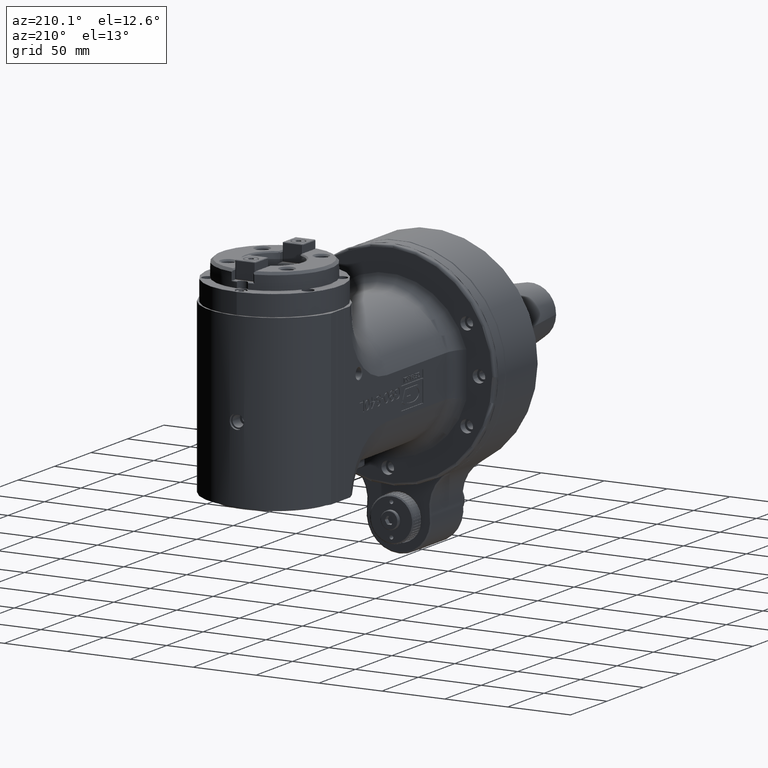
[diagram: clean part render]
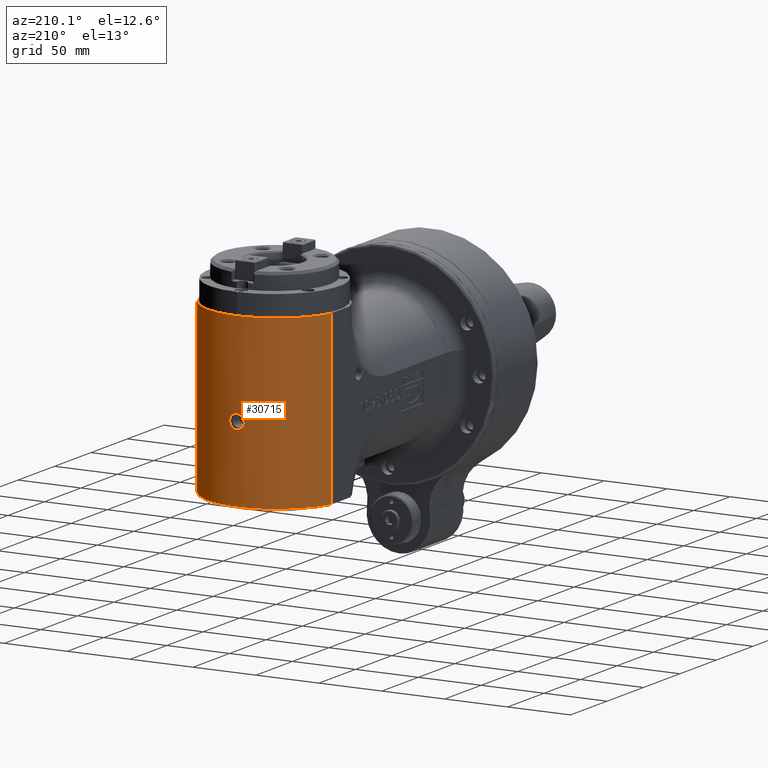
[diagram: same view with one face highlighted and labeled with its STEP entity id]
A machine part, auxiliary view. The second image highlights one B-rep face of the part: STEP entity #30715.
In plain terms, the highlighted cylindrical surface (partial cylindrical patch) has radius 55 mm, axis along (0, 0, 1).
Its self-contained STEP definition (entity closure, byte-faithful):
#327=B_SPLINE_CURVE_WITH_KNOTS('',3,(#46790,#46791,#46792,#46793,#46794,
#46795,#46796,#46797,#46798,#46799,#46800,#46801,#46802,#46803,#46804,#46805,
#46806,#46807),.UNSPECIFIED.,.F.,.F.,(4,2,2,2,2,2,2,2,4),(-2.6011789869502,
-2.38441451245236,-2.16765003795452,-1.95088468129399,-1.73411932463347,
-1.51735396797295,-1.30058861131243,-1.08382413681458,-0.867059662316735),
 .UNSPECIFIED.);
#328=B_SPLINE_CURVE_WITH_KNOTS('',3,(#46808,#46809,#46810,#46811,#46812,
#46813,#46814,#46815,#46816,#46817,#46818,#46819,#46820,#46821,#46822,#46823,
#46824,#46825,#46826),.UNSPECIFIED.,.F.,.F.,(4,2,2,2,3,2,2,2,4),(-0.867059662316735,
-0.65029518781889,-0.433530713321044,-0.216765356660522,0.,0.216765356660523,
0.433530713321045,0.65029518781889,0.867059662316735),.UNSPECIFIED.);
#666=CYLINDRICAL_SURFACE('',#32741,55.);
#1374=FACE_BOUND('',#9399,.T.);
#2011=LINE('',#46785,#4922);
#2012=LINE('',#46787,#4923);
#4922=VECTOR('',#36598,134.7);
#4923=VECTOR('',#36601,134.7);
#7547=FACE_OUTER_BOUND('',#9398,.T.);
#9398=EDGE_LOOP('',(#21300,#21301,#21302,#21303));
#9399=EDGE_LOOP('',(#21304,#21305));
#11275=CIRCLE('',#32468,55.);
#11285=CIRCLE('',#32481,55.);
#12567=VERTEX_POINT('',#44727);
#12568=VERTEX_POINT('',#44729);
#12601=VERTEX_POINT('',#44813);
#12602=VERTEX_POINT('',#44815);
#13058=VERTEX_POINT('',#46788);
#13059=VERTEX_POINT('',#46789);
#15621=EDGE_CURVE('',#12567,#12568,#11275,.T.);
#15657=EDGE_CURVE('',#12602,#12601,#11285,.T.);
#16241=EDGE_CURVE('',#12601,#12568,#2011,.T.);
#16242=EDGE_CURVE('',#12602,#12567,#2012,.T.);
#16243=EDGE_CURVE('',#13058,#13059,#327,.T.);
#16244=EDGE_CURVE('',#13059,#13058,#328,.T.);
#21300=ORIENTED_EDGE('',*,*,#15621,.F.);
#21301=ORIENTED_EDGE('',*,*,#16242,.F.);
#21302=ORIENTED_EDGE('',*,*,#15657,.T.);
#21303=ORIENTED_EDGE('',*,*,#16241,.T.);
#21304=ORIENTED_EDGE('',*,*,#16243,.T.);
#21305=ORIENTED_EDGE('',*,*,#16244,.T.);
#30715=ADVANCED_FACE('',(#7547,#1374),#666,.T.);
#32468=AXIS2_PLACEMENT_3D('',#44730,#35629,#35630);
#32481=AXIS2_PLACEMENT_3D('',#44816,#35680,#35681);
#32741=AXIS2_PLACEMENT_3D('',#46786,#36599,#36600);
#35629=DIRECTION('center_axis',(0.,0.,1.));
#35630=DIRECTION('ref_axis',(0.954545454545451,0.298065387468285,0.));
#35680=DIRECTION('center_axis',(0.,0.,1.));
#35681=DIRECTION('ref_axis',(0.954545454545451,0.298065387468285,0.));
#36598=DIRECTION('',(0.,0.,1.));
#36599=DIRECTION('center_axis',(0.,0.,1.));
#36600=DIRECTION('ref_axis',(1.,0.,0.));
#36601=DIRECTION('',(0.,0.,1.));
#44727=CARTESIAN_POINT('',(52.5,216.3935963108,74.7));
#44729=CARTESIAN_POINT('',(-52.5,216.3935963108,74.7));
#44730=CARTESIAN_POINT('Origin',(1.224646799147E-14,200.,74.7));
#44813=CARTESIAN_POINT('',(-52.5,216.3935963108,-60.));
#44815=CARTESIAN_POINT('',(52.5,216.3935963108,-60.));
#44816=CARTESIAN_POINT('Origin',(1.224646799147E-14,200.,-60.));
#46785=CARTESIAN_POINT('',(-52.5,216.3935963108,-60.));
#46786=CARTESIAN_POINT('Origin',(1.224646799147E-14,200.,-80.));
#46787=CARTESIAN_POINT('',(52.5,216.3935963108,-60.));
#46788=CARTESIAN_POINT('',(0.,255.,5.75));
#46789=CARTESIAN_POINT('',(7.04171909509728E-16,255.,-5.75));
#46790=CARTESIAN_POINT('Ctrl Pts',(-1.94289029309402E-15,255.,5.75));
#46791=CARTESIAN_POINT('Ctrl Pts',(-0.72254824832615,255.,5.75));
#46792=CARTESIAN_POINT('Ctrl Pts',(-1.49289893049086,254.984304073497,5.60549053860152));
#46793=CARTESIAN_POINT('Ctrl Pts',(-2.90942554528885,254.927567620192,5.01851714258691));
#46794=CARTESIAN_POINT('Ctrl Pts',(-3.55564564527126,254.887331300176,4.57608233837404));
#46795=CARTESIAN_POINT('Ctrl Pts',(-4.57608441480093,254.811688596221,3.55564356884437));
#46796=CARTESIAN_POINT('Ctrl Pts',(-5.01851759707621,254.771355890093,2.90942437769808));
#46797=CARTESIAN_POINT('Ctrl Pts',(-5.60548978752244,254.714398740781,1.49290081383351));
#46798=CARTESIAN_POINT('Ctrl Pts',(-5.75,254.698606015144,0.722551188868409));
#46799=CARTESIAN_POINT('Ctrl Pts',(-5.75,254.698606015144,-0.722551188868408));
#46800=CARTESIAN_POINT('Ctrl Pts',(-5.60548978752244,254.714398740781,-1.4929008138335));
#46801=CARTESIAN_POINT('Ctrl Pts',(-5.01851759707621,254.771355890093,-2.90942437769807));
#46802=CARTESIAN_POINT('Ctrl Pts',(-4.57608441480092,254.811688596221,-3.55564356884436));
#46803=CARTESIAN_POINT('Ctrl Pts',(-3.55564564527125,254.887331300176,-4.57608233837403));
#46804=CARTESIAN_POINT('Ctrl Pts',(-2.90942554528885,254.927567620192,-5.01851714258691));
#46805=CARTESIAN_POINT('Ctrl Pts',(-1.49289893049086,254.984304073497,-5.60549053860152));
#46806=CARTESIAN_POINT('Ctrl Pts',(-0.72254824832615,255.,-5.75));
#46807=CARTESIAN_POINT('Ctrl Pts',(8.32667268468867E-16,255.,-5.75));
#46808=CARTESIAN_POINT('Ctrl Pts',(8.32667268468867E-16,255.,-5.75));
#46809=CARTESIAN_POINT('Ctrl Pts',(0.722548248326151,255.,-5.75));
#46810=CARTESIAN_POINT('Ctrl Pts',(1.49289893049086,254.984304073497,-5.60549053860152));
#46811=CARTESIAN_POINT('Ctrl Pts',(2.90942554528885,254.927567620192,-5.01851714258692));
#46812=CARTESIAN_POINT('Ctrl Pts',(3.55564564527125,254.887331300176,-4.57608233837403));
#46813=CARTESIAN_POINT('Ctrl Pts',(4.57608441480092,254.811688596221,-3.55564356884436));
#46814=CARTESIAN_POINT('Ctrl Pts',(5.01851759707621,254.771355890093,-2.90942437769807));
#46815=CARTESIAN_POINT('Ctrl Pts',(5.60548978752244,254.714398740781,-1.49290081383351));
#46816=CARTESIAN_POINT('Ctrl Pts',(5.75,254.698606015144,-0.722551188868407));
#46817=CARTESIAN_POINT('Ctrl Pts',(5.75,254.698606015144,0.));
#46818=CARTESIAN_POINT('Ctrl Pts',(5.75,254.698606015144,0.722551188868409));
#46819=CARTESIAN_POINT('Ctrl Pts',(5.60548978752244,254.714398740781,1.49290081383351));
#46820=CARTESIAN_POINT('Ctrl Pts',(5.01851759707621,254.771355890093,2.90942437769808));
#46821=CARTESIAN_POINT('Ctrl Pts',(4.57608441480093,254.811688596221,3.55564356884437));
#46822=CARTESIAN_POINT('Ctrl Pts',(3.55564564527126,254.887331300176,4.57608233837404));
#46823=CARTESIAN_POINT('Ctrl Pts',(2.90942554528885,254.927567620192,5.01851714258691));
#46824=CARTESIAN_POINT('Ctrl Pts',(1.49289893049086,254.984304073497,5.60549053860152));
#46825=CARTESIAN_POINT('Ctrl Pts',(0.722548248326149,255.,5.75));
#46826=CARTESIAN_POINT('Ctrl Pts',(-1.38777878078145E-15,255.,5.75));